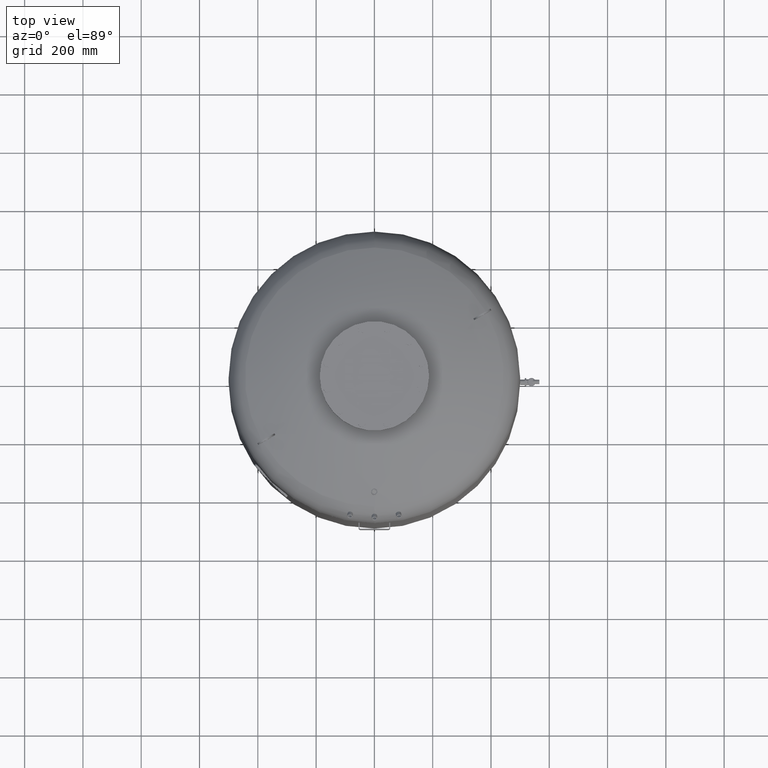
[diagram: clean part render]
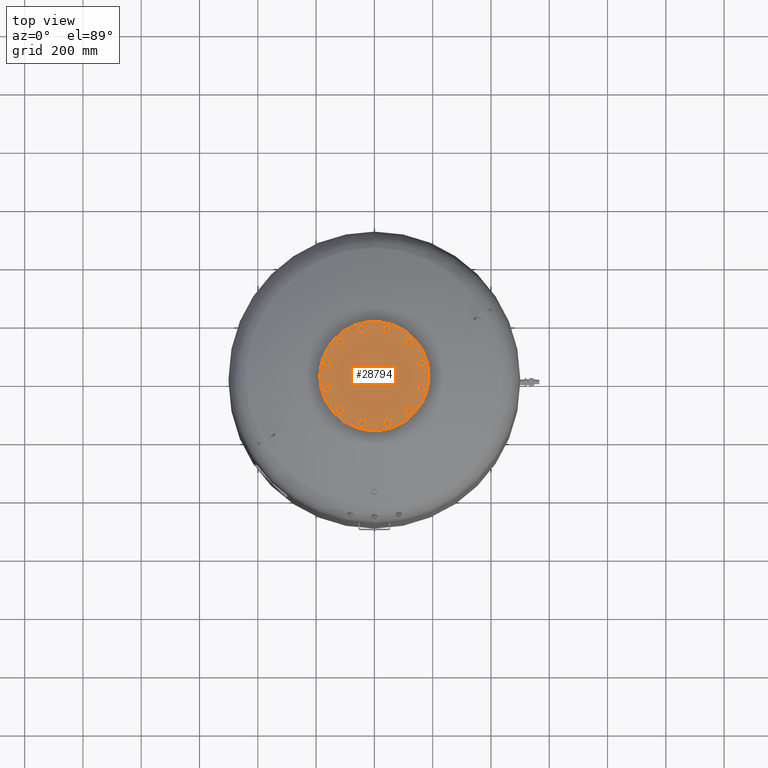
[diagram: same view with one face highlighted and labeled with its STEP entity id]
A machine part, top view. The second image highlights one B-rep face of the part: STEP entity #28794.
In plain terms, the highlighted planar face has unit normal (0, 0, 1).
Its self-contained STEP definition (entity closure, byte-faithful):
#21032=CARTESIAN_POINT('',(-187.500000000000000,0.0,2020.0));
#21033=VERTEX_POINT('',#21032);
#21049=CARTESIAN_POINT('',(187.500000000000000,-2.296137E-014,2020.0));
#21050=VERTEX_POINT('',#21049);
#21057=CARTESIAN_POINT('',(0.0,0.0,2020.0));
#21058=DIRECTION('',(0.0,0.0,-1.0));
#21059=DIRECTION('',(-1.0,0.0,0.0));
#21060=AXIS2_PLACEMENT_3D('',#21057,#21058,#21059);
#21061=CIRCLE('',#21060,187.500000000000000);
#21062=EDGE_CURVE('',#21050,#21033,#21061,.T.);
#26288=CARTESIAN_POINT('',(157.729139400922860,30.104983413641008,2020.0));
#26289=VERTEX_POINT('',#26288);
#26290=CARTESIAN_POINT('',(148.288440171855850,40.247625971983268,2020.0));
#26291=VERTEX_POINT('',#26290);
#26292=CARTESIAN_POINT('',(157.729139400922860,30.104983413641008,2020.0));
#26293=DIRECTION('',(-0.681323780155013,0.731982176419128,0.0));
#26294=VECTOR('',#26293,13.856406460551090);
#26295=LINE('',#26292,#26294);
#26296=EDGE_CURVE('',#26289,#26291,#26295,.T.);
#26328=CARTESIAN_POINT('',(171.233275132485970,33.209547496330110,2020.0));
#26329=VERTEX_POINT('',#26328);
#26330=CARTESIAN_POINT('',(171.233275132485970,33.209547496330110,2020.0));
#26331=DIRECTION('',(-0.974577049973894,-0.224052613607123,0.0));
#26332=VECTOR('',#26331,13.856406460551119);
#26333=LINE('',#26330,#26332);
#26334=EDGE_CURVE('',#26329,#26289,#26333,.T.);
#26359=CARTESIAN_POINT('',(175.296711634982050,46.456754137361422,2020.0));
#26360=VERTEX_POINT('',#26359);
#26361=CARTESIAN_POINT('',(175.296711634982050,46.456754137361422,2020.0));
#26362=DIRECTION('',(-0.293253269818881,-0.956034790026249,0.0));
#26363=VECTOR('',#26362,13.856406460551076);
#26364=LINE('',#26361,#26363);
#26365=EDGE_CURVE('',#26360,#26329,#26364,.T.);
#26390=CARTESIAN_POINT('',(152.351876674351930,53.494832613014587,2020.0));
#26391=VERTEX_POINT('',#26390);
#26392=CARTESIAN_POINT('',(148.288440171855850,40.247625971983268,2020.0));
#26393=DIRECTION('',(0.293253269818881,0.956034790026249,0.0));
#26394=VECTOR('',#26393,13.856406460551083);
#26395=LINE('',#26392,#26394);
#26396=EDGE_CURVE('',#26291,#26391,#26395,.T.);
#26421=CARTESIAN_POINT('',(165.856012405915040,56.599396695703689,2020.0));
#26422=VERTEX_POINT('',#26421);
#26423=CARTESIAN_POINT('',(152.351876674351930,53.494832613014587,2020.0));
#26424=DIRECTION('',(0.974577049973894,0.224052613607123,0.0));
#26425=VECTOR('',#26424,13.856406460551119);
#26426=LINE('',#26423,#26425);
#26427=EDGE_CURVE('',#26391,#26422,#26426,.T.);
#26452=CARTESIAN_POINT('',(165.856012405915040,56.599396695703689,2020.0));
#26453=DIRECTION('',(0.681323780155012,-0.731982176419129,0.0));
#26454=VECTOR('',#26453,13.856406460551096);
#26455=LINE('',#26452,#26454);
#26456=EDGE_CURVE('',#26422,#26360,#26455,.T.);
#26488=CARTESIAN_POINT('',(121.544949931435720,104.936250117183760,2020.0));
#26489=VERTEX_POINT('',#26488);
#26490=CARTESIAN_POINT('',(108.297743290404380,108.999686619679820,2020.0));
#26491=VERTEX_POINT('',#26490);
#26492=CARTESIAN_POINT('',(121.544949931435720,104.936250117183760,2020.0));
#26493=DIRECTION('',(-0.956034790026250,0.293253269818880,0.0));
#26494=VECTOR('',#26493,13.856406460551101);
#26495=LINE('',#26492,#26494);
#26496=EDGE_CURVE('',#26489,#26491,#26495,.T.);
#26528=CARTESIAN_POINT('',(131.687592489777960,114.376949346250780,2020.0));
#26529=VERTEX_POINT('',#26528);
#26530=CARTESIAN_POINT('',(131.687592489777960,114.376949346250780,2020.0));
#26531=DIRECTION('',(-0.731982176419127,-0.681323780155014,0.0));
#26532=VECTOR('',#26531,13.856406460551080);
#26533=LINE('',#26530,#26532);
#26534=EDGE_CURVE('',#26529,#26489,#26533,.T.);
#26559=CARTESIAN_POINT('',(128.583028407088880,127.881085077813880,2020.0));
#26560=VERTEX_POINT('',#26559);
#26561=CARTESIAN_POINT('',(128.583028407088880,127.881085077813880,2020.0));
#26562=DIRECTION('',(0.224052613607122,-0.974577049973894,0.0));
#26563=VECTOR('',#26562,13.856406460551099);
#26564=LINE('',#26561,#26563);
#26565=EDGE_CURVE('',#26560,#26529,#26564,.T.);
#26590=CARTESIAN_POINT('',(105.193179207715300,122.503822351242900,2020.0));
#26591=VERTEX_POINT('',#26590);
#26592=CARTESIAN_POINT('',(108.297743290404380,108.999686619679820,2020.0));
#26593=DIRECTION('',(-0.224052613607122,0.974577049973894,0.0));
#26594=VECTOR('',#26593,13.856406460551087);
#26595=LINE('',#26592,#26594);
#26596=EDGE_CURVE('',#26491,#26591,#26595,.T.);
#26621=CARTESIAN_POINT('',(115.335821766057560,131.944521580309950,2020.0));
#26622=VERTEX_POINT('',#26621);
#26623=CARTESIAN_POINT('',(105.193179207715300,122.503822351242900,2020.0));
#26624=DIRECTION('',(0.731982176419127,0.681323780155014,0.0));
#26625=VECTOR('',#26624,13.856406460551121);
#26626=LINE('',#26623,#26625);
#26627=EDGE_CURVE('',#26591,#26622,#26626,.T.);
#26652=CARTESIAN_POINT('',(115.335821766057560,131.944521580309950,2020.0));
#26653=DIRECTION('',(0.956034790026249,-0.293253269818881,0.0));
#26654=VECTOR('',#26653,13.856406460551076);
#26655=LINE('',#26652,#26654);
#26656=EDGE_CURVE('',#26622,#26560,#26655,.T.);
#26688=CARTESIAN_POINT('',(52.792889283739193,151.649933345076730,2020.0));
#26689=VERTEX_POINT('',#26688);
#26690=CARTESIAN_POINT('',(39.288753552176118,148.545369262387680,2020.0));
#26691=VERTEX_POINT('',#26690);
#26692=CARTESIAN_POINT('',(52.792889283739193,151.649933345076730,2020.0));
#26693=DIRECTION('',(-0.974577049973894,-0.224052613607120,0.0));
#26694=VECTOR('',#26693,13.856406460551073);
#26695=LINE('',#26692,#26694);
#26696=EDGE_CURVE('',#26689,#26691,#26695,.T.);
#26728=CARTESIAN_POINT('',(56.856325786235274,164.897139986108100,2020.0));
#26729=VERTEX_POINT('',#26728);
#26730=CARTESIAN_POINT('',(56.856325786235274,164.897139986108100,2020.0));
#26731=DIRECTION('',(-0.293253269818881,-0.956034790026249,0.0));
#26732=VECTOR('',#26731,13.856406460551133);
#26733=LINE('',#26730,#26732);
#26734=EDGE_CURVE('',#26729,#26689,#26733,.T.);
#26759=CARTESIAN_POINT('',(47.415626557168267,175.039782544450330,2020.0));
#26760=VERTEX_POINT('',#26759);
#26761=CARTESIAN_POINT('',(47.415626557168267,175.039782544450330,2020.0));
#26762=DIRECTION('',(0.681323780155014,-0.731982176419128,0.0));
#26763=VECTOR('',#26762,13.856406460551069);
#26764=LINE('',#26761,#26763);
#26765=EDGE_CURVE('',#26760,#26729,#26764,.T.);
#26790=CARTESIAN_POINT('',(29.848054323109103,158.688011820729910,2020.0));
#26791=VERTEX_POINT('',#26790);
#26792=CARTESIAN_POINT('',(39.288753552176118,148.545369262387680,2020.0));
#26793=DIRECTION('',(-0.681323780155014,0.731982176419127,0.0));
#26794=VECTOR('',#26793,13.856406460551076);
#26795=LINE('',#26792,#26794);
#26796=EDGE_CURVE('',#26691,#26791,#26795,.T.);
#26821=CARTESIAN_POINT('',(33.911490825605156,171.935218461761250,2020.0));
#26822=VERTEX_POINT('',#26821);
#26823=CARTESIAN_POINT('',(29.848054323109103,158.688011820729910,2020.0));
#26824=DIRECTION('',(0.293253269818879,0.956034790026250,0.0));
#26825=VECTOR('',#26824,13.856406460551097);
#26826=LINE('',#26823,#26825);
#26827=EDGE_CURVE('',#26791,#26822,#26826,.T.);
#26852=CARTESIAN_POINT('',(33.911490825605156,171.935218461761250,2020.0));
#26853=DIRECTION('',(0.974577049973894,0.224052613607121,0.0));
#26854=VECTOR('',#26853,13.856406460551113);
#26855=LINE('',#26852,#26854);
#26856=EDGE_CURVE('',#26822,#26760,#26855,.T.);
#26888=CARTESIAN_POINT('',(-30.104983413641008,157.729139400922860,2020.0));
#26889=VERTEX_POINT('',#26888);
#26890=CARTESIAN_POINT('',(-40.247625971983268,148.288440171855850,2020.0));
#26891=VERTEX_POINT('',#26890);
#26892=CARTESIAN_POINT('',(-30.104983413641008,157.729139400922860,2020.0));
#26893=DIRECTION('',(-0.731982176419128,-0.681323780155013,0.0));
#26894=VECTOR('',#26893,13.856406460551090);
#26895=LINE('',#26892,#26894);
#26896=EDGE_CURVE('',#26889,#26891,#26895,.T.);
#26928=CARTESIAN_POINT('',(-33.209547496330110,171.233275132485970,2020.0));
#26929=VERTEX_POINT('',#26928);
#26930=CARTESIAN_POINT('',(-33.209547496330110,171.233275132485970,2020.0));
#26931=DIRECTION('',(0.224052613607123,-0.974577049973894,0.0));
#26932=VECTOR('',#26931,13.856406460551119);
#26933=LINE('',#26930,#26932);
#26934=EDGE_CURVE('',#26929,#26889,#26933,.T.);
#26959=CARTESIAN_POINT('',(-46.456754137361422,175.296711634982050,2020.0));
#26960=VERTEX_POINT('',#26959);
#26961=CARTESIAN_POINT('',(-46.456754137361422,175.296711634982050,2020.0));
#26962=DIRECTION('',(0.956034790026249,-0.293253269818881,0.0));
#26963=VECTOR('',#26962,13.856406460551076);
#26964=LINE('',#26961,#26963);
#26965=EDGE_CURVE('',#26960,#26929,#26964,.T.);
#26990=CARTESIAN_POINT('',(-53.494832613014587,152.351876674351930,2020.0));
#26991=VERTEX_POINT('',#26990);
#26992=CARTESIAN_POINT('',(-40.247625971983268,148.288440171855850,2020.0));
#26993=DIRECTION('',(-0.956034790026249,0.293253269818881,0.0));
#26994=VECTOR('',#26993,13.856406460551083);
#26995=LINE('',#26992,#26994);
#26996=EDGE_CURVE('',#26891,#26991,#26995,.T.);
#27021=CARTESIAN_POINT('',(-56.599396695703689,165.856012405915040,2020.0));
#27022=VERTEX_POINT('',#27021);
#27023=CARTESIAN_POINT('',(-53.494832613014587,152.351876674351930,2020.0));
#27024=DIRECTION('',(-0.224052613607123,0.974577049973894,0.0));
#27025=VECTOR('',#27024,13.856406460551119);
#27026=LINE('',#27023,#27025);
#27027=EDGE_CURVE('',#26991,#27022,#27026,.T.);
#27052=CARTESIAN_POINT('',(-56.599396695703689,165.856012405915040,2020.0));
#27053=DIRECTION('',(0.731982176419129,0.681323780155012,0.0));
#27054=VECTOR('',#27053,13.856406460551096);
#27055=LINE('',#27052,#27054);
#27056=EDGE_CURVE('',#27022,#26960,#27055,.T.);
#27088=CARTESIAN_POINT('',(-104.936250117183700,121.544949931435750,2020.0));
#27089=VERTEX_POINT('',#27088);
#27090=CARTESIAN_POINT('',(-108.999686619679760,108.297743290404440,2020.0));
#27091=VERTEX_POINT('',#27090);
#27092=CARTESIAN_POINT('',(-104.936250117183700,121.544949931435750,2020.0));
#27093=DIRECTION('',(-0.293253269818880,-0.956034790026249,0.0));
#27094=VECTOR('',#27093,13.856406460551073);
#27095=LINE('',#27092,#27094);
#27096=EDGE_CURVE('',#27089,#27091,#27095,.T.);
#27128=CARTESIAN_POINT('',(-114.376949346250730,131.687592489778010,2020.0));
#27129=VERTEX_POINT('',#27128);
#27130=CARTESIAN_POINT('',(-114.376949346250730,131.687592489778010,2020.0));
#27131=DIRECTION('',(0.681323780155013,-0.731982176419128,0.0));
#27132=VECTOR('',#27131,13.856406460551101);
#27133=LINE('',#27130,#27132);
#27134=EDGE_CURVE('',#27129,#27089,#27133,.T.);
#27159=CARTESIAN_POINT('',(-127.881085077813810,128.583028407088930,2020.0));
#27160=VERTEX_POINT('',#27159);
#27161=CARTESIAN_POINT('',(-127.881085077813810,128.583028407088930,2020.0));
#27162=DIRECTION('',(0.974577049973894,0.224052613607122,0.0));
#27163=VECTOR('',#27162,13.856406460551087);
#27164=LINE('',#27161,#27163);
#27165=EDGE_CURVE('',#27160,#27129,#27164,.T.);
#27190=CARTESIAN_POINT('',(-122.503822351242850,105.193179207715360,2020.0));
#27191=VERTEX_POINT('',#27190);
#27192=CARTESIAN_POINT('',(-108.999686619679760,108.297743290404440,2020.0));
#27193=DIRECTION('',(-0.974577049973894,-0.224052613607122,0.0));
#27194=VECTOR('',#27193,13.856406460551087);
#27195=LINE('',#27192,#27194);
#27196=EDGE_CURVE('',#27091,#27191,#27195,.T.);
#27221=CARTESIAN_POINT('',(-131.944521580309900,115.335821766057620,2020.0));
#27222=VERTEX_POINT('',#27221);
#27223=CARTESIAN_POINT('',(-122.503822351242850,105.193179207715360,2020.0));
#27224=DIRECTION('',(-0.681323780155014,0.731982176419127,0.0));
#27225=VECTOR('',#27224,13.856406460551121);
#27226=LINE('',#27223,#27225);
#27227=EDGE_CURVE('',#27191,#27222,#27226,.T.);
#27252=CARTESIAN_POINT('',(-131.944521580309900,115.335821766057620,2020.0));
#27253=DIRECTION('',(0.293253269818882,0.956034790026249,0.0));
#27254=VECTOR('',#27253,13.856406460551081);
#27255=LINE('',#27252,#27254);
#27256=EDGE_CURVE('',#27222,#27160,#27255,.T.);
#27288=CARTESIAN_POINT('',(-151.649933345076730,52.792889283739214,2020.0));
#27289=VERTEX_POINT('',#27288);
#27290=CARTESIAN_POINT('',(-148.545369262387650,39.288753552176125,2020.0));
#27291=VERTEX_POINT('',#27290);
#27292=CARTESIAN_POINT('',(-151.649933345076730,52.792889283739214,2020.0));
#27293=DIRECTION('',(0.224052613607122,-0.974577049973894,0.0));
#27294=VECTOR('',#27293,13.856406460551092);
#27295=LINE('',#27292,#27294);
#27296=EDGE_CURVE('',#27289,#27291,#27295,.T.);
#27328=CARTESIAN_POINT('',(-164.897139986108100,56.856325786235296,2020.0));
#27329=VERTEX_POINT('',#27328);
#27330=CARTESIAN_POINT('',(-164.897139986108100,56.856325786235296,2020.0));
#27331=DIRECTION('',(0.956034790026249,-0.293253269818881,0.0));
#27332=VECTOR('',#27331,13.856406460551133);
#27333=LINE('',#27330,#27332);
#27334=EDGE_CURVE('',#27329,#27289,#27333,.T.);
#27359=CARTESIAN_POINT('',(-175.039782544450300,47.415626557168260,2020.0));
#27360=VERTEX_POINT('',#27359);
#27361=CARTESIAN_POINT('',(-175.039782544450300,47.415626557168260,2020.0));
#27362=DIRECTION('',(0.731982176419126,0.681323780155016,0.0));
#27363=VECTOR('',#27362,13.856406460551069);
#27364=LINE('',#27361,#27363);
#27365=EDGE_CURVE('',#27360,#27329,#27364,.T.);
#27390=CARTESIAN_POINT('',(-158.688011820729910,29.848054323109110,2020.0));
#27391=VERTEX_POINT('',#27390);
#27392=CARTESIAN_POINT('',(-148.545369262387650,39.288753552176125,2020.0));
#27393=DIRECTION('',(-0.731982176419128,-0.681323780155013,0.0));
#27394=VECTOR('',#27393,13.856406460551096);
#27395=LINE('',#27392,#27394);
#27396=EDGE_CURVE('',#27291,#27391,#27395,.T.);
#27421=CARTESIAN_POINT('',(-171.935218461761250,33.911490825605171,2020.0));
#27422=VERTEX_POINT('',#27421);
#27423=CARTESIAN_POINT('',(-158.688011820729910,29.848054323109110,2020.0));
#27424=DIRECTION('',(-0.956034790026250,0.293253269818880,0.0));
#27425=VECTOR('',#27424,13.856406460551101);
#27426=LINE('',#27423,#27425);
#27427=EDGE_CURVE('',#27391,#27422,#27426,.T.);
#27452=CARTESIAN_POINT('',(-171.935218461761250,33.911490825605171,2020.0));
#27453=DIRECTION('',(-0.224052613607120,0.974577049973894,0.0));
#27454=VECTOR('',#27453,13.856406460551087);
#27455=LINE('',#27452,#27454);
#27456=EDGE_CURVE('',#27422,#27360,#27455,.T.);
#27488=CARTESIAN_POINT('',(-157.729139400922860,-30.104983413640987,2020.0));
#27489=VERTEX_POINT('',#27488);
#27490=CARTESIAN_POINT('',(-148.288440171855850,-40.247625971983247,2020.0));
#27491=VERTEX_POINT('',#27490);
#27492=CARTESIAN_POINT('',(-157.729139400922860,-30.104983413640987,2020.0));
#27493=DIRECTION('',(0.681323780155013,-0.731982176419128,0.0));
#27494=VECTOR('',#27493,13.856406460551090);
#27495=LINE('',#27492,#27494);
#27496=EDGE_CURVE('',#27489,#27491,#27495,.T.);
#27528=CARTESIAN_POINT('',(-171.233275132486000,-33.209547496330096,2020.0));
#27529=VERTEX_POINT('',#27528);
#27530=CARTESIAN_POINT('',(-171.233275132486000,-33.209547496330096,2020.0));
#27531=DIRECTION('',(0.974577049973894,0.224052613607123,0.0));
#27532=VECTOR('',#27531,13.856406460551147);
#27533=LINE('',#27530,#27532);
#27534=EDGE_CURVE('',#27529,#27489,#27533,.T.);
#27559=CARTESIAN_POINT('',(-175.296711634982050,-46.456754137361401,2020.0));
#27560=VERTEX_POINT('',#27559);
#27561=CARTESIAN_POINT('',(-175.296711634982050,-46.456754137361401,2020.0));
#27562=DIRECTION('',(0.293253269818880,0.956034790026250,0.0));
#27563=VECTOR('',#27562,13.856406460551062);
#27564=LINE('',#27561,#27563);
#27565=EDGE_CURVE('',#27560,#27529,#27564,.T.);
#27590=CARTESIAN_POINT('',(-152.351876674351960,-53.494832613014580,2020.0));
#27591=VERTEX_POINT('',#27590);
#27592=CARTESIAN_POINT('',(-148.288440171855850,-40.247625971983247,2020.0));
#27593=DIRECTION('',(-0.293253269818883,-0.956034790026249,0.0));
#27594=VECTOR('',#27593,13.856406460551106);
#27595=LINE('',#27592,#27594);
#27596=EDGE_CURVE('',#27491,#27591,#27595,.T.);
#27621=CARTESIAN_POINT('',(-165.856012405915070,-56.599396695703646,2020.0));
#27622=VERTEX_POINT('',#27621);
#27623=CARTESIAN_POINT('',(-152.351876674351960,-53.494832613014580,2020.0));
#27624=DIRECTION('',(-0.974577049973894,-0.224052613607121,0.0));
#27625=VECTOR('',#27624,13.856406460551110);
#27626=LINE('',#27623,#27625);
#27627=EDGE_CURVE('',#27591,#27622,#27626,.T.);
#27652=CARTESIAN_POINT('',(-165.856012405915070,-56.599396695703646,2020.0));
#27653=DIRECTION('',(-0.681323780155012,0.731982176419129,0.0));
#27654=VECTOR('',#27653,13.856406460551062);
#27655=LINE('',#27652,#27654);
#27656=EDGE_CURVE('',#27622,#27560,#27655,.T.);
#27688=CARTESIAN_POINT('',(-121.544949931435750,-104.936250117183680,2020.0));
#27689=VERTEX_POINT('',#27688);
#27690=CARTESIAN_POINT('',(-108.297743290404440,-108.999686619679760,2020.0));
#27691=VERTEX_POINT('',#27690);
#27692=CARTESIAN_POINT('',(-121.544949931435750,-104.936250117183680,2020.0));
#27693=DIRECTION('',(0.956034790026249,-0.293253269818882,0.0));
#27694=VECTOR('',#27693,13.856406460551081);
#27695=LINE('',#27692,#27694);
#27696=EDGE_CURVE('',#27689,#27691,#27695,.T.);
#27728=CARTESIAN_POINT('',(-131.687592489778010,-114.376949346250730,2020.0));
#27729=VERTEX_POINT('',#27728);
#27730=CARTESIAN_POINT('',(-131.687592489778010,-114.376949346250730,2020.0));
#27731=DIRECTION('',(0.731982176419127,0.681323780155014,0.0));
#27732=VECTOR('',#27731,13.856406460551121);
#27733=LINE('',#27730,#27732);
#27734=EDGE_CURVE('',#27729,#27689,#27733,.T.);
#27759=CARTESIAN_POINT('',(-128.583028407088930,-127.881085077813790,2020.0));
#27760=VERTEX_POINT('',#27759);
#27761=CARTESIAN_POINT('',(-128.583028407088930,-127.881085077813790,2020.0));
#27762=DIRECTION('',(-0.224052613607122,0.974577049973894,0.0));
#27763=VECTOR('',#27762,13.856406460551071);
#27764=LINE('',#27761,#27763);
#27765=EDGE_CURVE('',#27760,#27729,#27764,.T.);
#27790=CARTESIAN_POINT('',(-105.193179207715360,-122.503822351242850,2020.0));
#27791=VERTEX_POINT('',#27790);
#27792=CARTESIAN_POINT('',(-108.297743290404440,-108.999686619679760,2020.0));
#27793=DIRECTION('',(0.224052613607122,-0.974577049973894,0.0));
#27794=VECTOR('',#27793,13.856406460551087);
#27795=LINE('',#27792,#27794);
#27796=EDGE_CURVE('',#27691,#27791,#27795,.T.);
#27821=CARTESIAN_POINT('',(-115.335821766057620,-131.944521580309900,2020.0));
#27822=VERTEX_POINT('',#27821);
#27823=CARTESIAN_POINT('',(-105.193179207715360,-122.503822351242850,2020.0));
#27824=DIRECTION('',(-0.731982176419127,-0.681323780155014,0.0));
#27825=VECTOR('',#27824,13.856406460551121);
#27826=LINE('',#27823,#27825);
#27827=EDGE_CURVE('',#27791,#27822,#27826,.T.);
#27852=CARTESIAN_POINT('',(-115.335821766057620,-131.944521580309900,2020.0));
#27853=DIRECTION('',(-0.956034790026249,0.293253269818883,0.0));
#27854=VECTOR('',#27853,13.856406460551085);
#27855=LINE('',#27852,#27854);
#27856=EDGE_CURVE('',#27822,#27760,#27855,.T.);
#27888=CARTESIAN_POINT('',(-52.792889283739228,-151.649933345076730,2020.0));
#27889=VERTEX_POINT('',#27888);
#27890=CARTESIAN_POINT('',(-39.288753552176132,-148.545369262387680,2020.0));
#27891=VERTEX_POINT('',#27890);
#27892=CARTESIAN_POINT('',(-52.792889283739228,-151.649933345076730,2020.0));
#27893=DIRECTION('',(0.974577049973894,0.224052613607120,0.0));
#27894=VECTOR('',#27893,13.856406460551094);
#27895=LINE('',#27892,#27894);
#27896=EDGE_CURVE('',#27889,#27891,#27895,.T.);
#27928=CARTESIAN_POINT('',(-56.856325786235296,-164.897139986108100,2020.0));
#27929=VERTEX_POINT('',#27928);
#27930=CARTESIAN_POINT('',(-56.856325786235296,-164.897139986108100,2020.0));
#27931=DIRECTION('',(0.293253269818880,0.956034790026250,0.0));
#27932=VECTOR('',#27931,13.856406460551129);
#27933=LINE('',#27930,#27932);
#27934=EDGE_CURVE('',#27929,#27889,#27933,.T.);
#27959=CARTESIAN_POINT('',(-47.415626557168281,-175.039782544450300,2020.0));
#27960=VERTEX_POINT('',#27959);
#27961=CARTESIAN_POINT('',(-47.415626557168281,-175.039782544450300,2020.0));
#27962=DIRECTION('',(-0.681323780155015,0.731982176419126,0.0));
#27963=VECTOR('',#27962,13.856406460551055);
#27964=LINE('',#27961,#27963);
#27965=EDGE_CURVE('',#27960,#27929,#27964,.T.);
#27990=CARTESIAN_POINT('',(-29.848054323109121,-158.688011820729910,2020.0));
#27991=VERTEX_POINT('',#27990);
#27992=CARTESIAN_POINT('',(-39.288753552176132,-148.545369262387680,2020.0));
#27993=DIRECTION('',(0.681323780155014,-0.731982176419127,0.0));
#27994=VECTOR('',#27993,13.856406460551073);
#27995=LINE('',#27992,#27994);
#27996=EDGE_CURVE('',#27891,#27991,#27995,.T.);
#28021=CARTESIAN_POINT('',(-33.911490825605199,-171.935218461761280,2020.0));
#28022=VERTEX_POINT('',#28021);
#28023=CARTESIAN_POINT('',(-29.848054323109121,-158.688011820729910,2020.0));
#28024=DIRECTION('',(-0.293253269818880,-0.956034790026249,0.0));
#28025=VECTOR('',#28024,13.856406460551133);
#28026=LINE('',#28023,#28025);
#28027=EDGE_CURVE('',#27991,#28022,#28026,.T.);
#28052=CARTESIAN_POINT('',(-33.911490825605199,-171.935218461761280,2020.0));
#28053=DIRECTION('',(-0.974577049973895,-0.224052613607118,0.0));
#28054=VECTOR('',#28053,13.856406460551074);
#28055=LINE('',#28052,#28054);
#28056=EDGE_CURVE('',#28022,#27960,#28055,.T.);
#28088=CARTESIAN_POINT('',(30.104983413640952,-157.729139400922890,2020.0));
#28089=VERTEX_POINT('',#28088);
#28090=CARTESIAN_POINT('',(40.247625971983211,-148.288440171855880,2020.0));
#28091=VERTEX_POINT('',#28090);
#28092=CARTESIAN_POINT('',(30.104983413640952,-157.729139400922890,2020.0));
#28093=DIRECTION('',(0.731982176419128,0.681323780155013,0.0));
#28094=VECTOR('',#28093,13.856406460551090);
#28095=LINE('',#28092,#28094);
#28096=EDGE_CURVE('',#28089,#28091,#28095,.T.);
#28128=CARTESIAN_POINT('',(33.209547496330039,-171.233275132486000,2020.0));
#28129=VERTEX_POINT('',#28128);
#28130=CARTESIAN_POINT('',(33.209547496330039,-171.233275132486000,2020.0));
#28131=DIRECTION('',(-0.224052613607122,0.974577049973894,0.0));
#28132=VECTOR('',#28131,13.856406460551115);
#28133=LINE('',#28130,#28132);
#28134=EDGE_CURVE('',#28129,#28089,#28133,.T.);
#28159=CARTESIAN_POINT('',(46.456754137361351,-175.296711634982070,2020.0));
#28160=VERTEX_POINT('',#28159);
#28161=CARTESIAN_POINT('',(46.456754137361351,-175.296711634982070,2020.0));
#28162=DIRECTION('',(-0.956034790026249,0.293253269818881,0.0));
#28163=VECTOR('',#28162,13.856406460551076);
#28164=LINE('',#28161,#28163);
#28165=EDGE_CURVE('',#28160,#28129,#28164,.T.);
#28190=CARTESIAN_POINT('',(53.494832613014523,-152.351876674351960,2020.0));
#28191=VERTEX_POINT('',#28190);
#28192=CARTESIAN_POINT('',(40.247625971983211,-148.288440171855880,2020.0));
#28193=DIRECTION('',(0.956034790026249,-0.293253269818881,0.0));
#28194=VECTOR('',#28193,13.856406460551076);
#28195=LINE('',#28192,#28194);
#28196=EDGE_CURVE('',#28091,#28191,#28195,.T.);
#28221=CARTESIAN_POINT('',(56.599396695703625,-165.856012405915070,2020.0));
#28222=VERTEX_POINT('',#28221);
#28223=CARTESIAN_POINT('',(53.494832613014523,-152.351876674351960,2020.0));
#28224=DIRECTION('',(0.224052613607123,-0.974577049973894,0.0));
#28225=VECTOR('',#28224,13.856406460551119);
#28226=LINE('',#28223,#28225);
#28227=EDGE_CURVE('',#28191,#28222,#28226,.T.);
#28252=CARTESIAN_POINT('',(56.599396695703625,-165.856012405915070,2020.0));
#28253=DIRECTION('',(-0.731982176419129,-0.681323780155012,0.0));
#28254=VECTOR('',#28253,13.856406460551101);
#28255=LINE('',#28252,#28254);
#28256=EDGE_CURVE('',#28222,#28160,#28255,.T.);
#28288=CARTESIAN_POINT('',(104.936250117183660,-121.544949931435800,2020.0));
#28289=VERTEX_POINT('',#28288);
#28290=CARTESIAN_POINT('',(108.999686619679750,-108.297743290404470,2020.0));
#28291=VERTEX_POINT('',#28290);
#28292=CARTESIAN_POINT('',(104.936250117183660,-121.544949931435800,2020.0));
#28293=DIRECTION('',(0.293253269818882,0.956034790026249,0.0));
#28294=VECTOR('',#28293,13.856406460551094);
#28295=LINE('',#28292,#28294);
#28296=EDGE_CURVE('',#28289,#28291,#28295,.T.);
#28328=CARTESIAN_POINT('',(114.376949346250710,-131.687592489778040,2020.0));
#28329=VERTEX_POINT('',#28328);
#28330=CARTESIAN_POINT('',(114.376949346250710,-131.687592489778040,2020.0));
#28331=DIRECTION('',(-0.681323780155015,0.731982176419126,0.0));
#28332=VECTOR('',#28331,13.856406460551110);
#28333=LINE('',#28330,#28332);
#28334=EDGE_CURVE('',#28329,#28289,#28333,.T.);
#28359=CARTESIAN_POINT('',(127.881085077813760,-128.583028407088960,2020.0));
#28360=VERTEX_POINT('',#28359);
#28361=CARTESIAN_POINT('',(127.881085077813760,-128.583028407088960,2020.0));
#28362=DIRECTION('',(-0.974577049973894,-0.224052613607122,0.0));
#28363=VECTOR('',#28362,13.856406460551058);
#28364=LINE('',#28361,#28363);
#28365=EDGE_CURVE('',#28360,#28329,#28364,.T.);
#28390=CARTESIAN_POINT('',(122.503822351242830,-105.193179207715390,2020.0));
#28391=VERTEX_POINT('',#28390);
#28392=CARTESIAN_POINT('',(108.999686619679750,-108.297743290404470,2020.0));
#28393=DIRECTION('',(0.974577049973894,0.224052613607122,0.0));
#28394=VECTOR('',#28393,13.856406460551087);
#28395=LINE('',#28392,#28394);
#28396=EDGE_CURVE('',#28291,#28391,#28395,.T.);
#28421=CARTESIAN_POINT('',(131.944521580309870,-115.335821766057650,2020.0));
#28422=VERTEX_POINT('',#28421);
#28423=CARTESIAN_POINT('',(122.503822351242830,-105.193179207715390,2020.0));
#28424=DIRECTION('',(0.681323780155014,-0.731982176419127,0.0));
#28425=VECTOR('',#28424,13.856406460551110);
#28426=LINE('',#28423,#28425);
#28427=EDGE_CURVE('',#28391,#28422,#28426,.T.);
#28452=CARTESIAN_POINT('',(131.944521580309870,-115.335821766057650,2020.0));
#28453=DIRECTION('',(-0.293253269818883,-0.956034790026249,0.0));
#28454=VECTOR('',#28453,13.856406460551085);
#28455=LINE('',#28452,#28454);
#28456=EDGE_CURVE('',#28422,#28360,#28455,.T.);
#28488=CARTESIAN_POINT('',(151.649933345076730,-52.792889283739228,2020.0));
#28489=VERTEX_POINT('',#28488);
#28490=CARTESIAN_POINT('',(148.545369262387650,-39.288753552176139,2020.0));
#28491=VERTEX_POINT('',#28490);
#28492=CARTESIAN_POINT('',(151.649933345076730,-52.792889283739228,2020.0));
#28493=DIRECTION('',(-0.224052613607122,0.974577049973894,0.0));
#28494=VECTOR('',#28493,13.856406460551092);
#28495=LINE('',#28492,#28494);
#28496=EDGE_CURVE('',#28489,#28491,#28495,.T.);
#28528=CARTESIAN_POINT('',(164.897139986108070,-56.856325786235303,2020.0));
#28529=VERTEX_POINT('',#28528);
#28530=CARTESIAN_POINT('',(164.897139986108070,-56.856325786235303,2020.0));
#28531=DIRECTION('',(-0.956034790026249,0.293253269818881,0.0));
#28532=VECTOR('',#28531,13.856406460551105);
#28533=LINE('',#28530,#28532);
#28534=EDGE_CURVE('',#28529,#28489,#28533,.T.);
#28559=CARTESIAN_POINT('',(175.039782544450300,-47.415626557168295,2020.0));
#28560=VERTEX_POINT('',#28559);
#28561=CARTESIAN_POINT('',(175.039782544450300,-47.415626557168295,2020.0));
#28562=DIRECTION('',(-0.731982176419128,-0.681323780155014,0.0));
#28563=VECTOR('',#28562,13.856406460551069);
#28564=LINE('',#28561,#28563);
#28565=EDGE_CURVE('',#28560,#28529,#28564,.T.);
#28590=CARTESIAN_POINT('',(158.688011820729910,-29.848054323109132,2020.0));
#28591=VERTEX_POINT('',#28590);
#28592=CARTESIAN_POINT('',(148.545369262387650,-39.288753552176139,2020.0));
#28593=DIRECTION('',(0.731982176419128,0.681323780155013,0.0));
#28594=VECTOR('',#28593,13.856406460551090);
#28595=LINE('',#28592,#28594);
#28596=EDGE_CURVE('',#28491,#28591,#28595,.T.);
#28621=CARTESIAN_POINT('',(171.935218461761250,-33.911490825605206,2020.0));
#28622=VERTEX_POINT('',#28621);
#28623=CARTESIAN_POINT('',(158.688011820729910,-29.848054323109132,2020.0));
#28624=DIRECTION('',(0.956034790026249,-0.293253269818881,0.0));
#28625=VECTOR('',#28624,13.856406460551105);
#28626=LINE('',#28623,#28625);
#28627=EDGE_CURVE('',#28591,#28622,#28626,.T.);
#28652=CARTESIAN_POINT('',(171.935218461761250,-33.911490825605206,2020.0));
#28653=DIRECTION('',(0.224052613607120,-0.974577049973894,0.0));
#28654=VECTOR('',#28653,13.856406460551087);
#28655=LINE('',#28652,#28654);
#28656=EDGE_CURVE('',#28622,#28560,#28655,.T.);
#28683=CARTESIAN_POINT('',(-93.750000000000000,-7.888609E-031,2020.0));
#28684=DIRECTION('',(0.0,0.0,1.0));
#28685=DIRECTION('',(0.0,1.0,0.0));
#28686=AXIS2_PLACEMENT_3D('',#28683,#28684,#28685);
#28687=PLANE('',#28686);
#28688=CARTESIAN_POINT('',(0.0,0.0,2020.0));
#28689=DIRECTION('',(0.0,0.0,-1.0));
#28690=DIRECTION('',(-1.0,0.0,0.0));
#28691=AXIS2_PLACEMENT_3D('',#28688,#28689,#28690);
#28692=CIRCLE('',#28691,187.500000000000000);
#28693=EDGE_CURVE('',#21033,#21050,#28692,.T.);
#28694=ORIENTED_EDGE('',*,*,#28693,.F.);
#28695=ORIENTED_EDGE('',*,*,#21062,.F.);
#28696=EDGE_LOOP('',(#28694,#28695));
#28697=FACE_OUTER_BOUND('',#28696,.T.);
#28698=ORIENTED_EDGE('',*,*,#26296,.T.);
#28699=ORIENTED_EDGE('',*,*,#26396,.T.);
#28700=ORIENTED_EDGE('',*,*,#26427,.T.);
#28701=ORIENTED_EDGE('',*,*,#26456,.T.);
#28702=ORIENTED_EDGE('',*,*,#26365,.T.);
#28703=ORIENTED_EDGE('',*,*,#26334,.T.);
#28704=EDGE_LOOP('',(#28698,#28699,#28700,#28701,#28702,#28703));
#28705=FACE_BOUND('',#28704,.T.);
#28706=ORIENTED_EDGE('',*,*,#26496,.T.);
#28707=ORIENTED_EDGE('',*,*,#26596,.T.);
#28708=ORIENTED_EDGE('',*,*,#26627,.T.);
#28709=ORIENTED_EDGE('',*,*,#26656,.T.);
#28710=ORIENTED_EDGE('',*,*,#26565,.T.);
#28711=ORIENTED_EDGE('',*,*,#26534,.T.);
#28712=EDGE_LOOP('',(#28706,#28707,#28708,#28709,#28710,#28711));
#28713=FACE_BOUND('',#28712,.T.);
#28714=ORIENTED_EDGE('',*,*,#26696,.T.);
#28715=ORIENTED_EDGE('',*,*,#26796,.T.);
#28716=ORIENTED_EDGE('',*,*,#26827,.T.);
#28717=ORIENTED_EDGE('',*,*,#26856,.T.);
#28718=ORIENTED_EDGE('',*,*,#26765,.T.);
#28719=ORIENTED_EDGE('',*,*,#26734,.T.);
#28720=EDGE_LOOP('',(#28714,#28715,#28716,#28717,#28718,#28719));
#28721=FACE_BOUND('',#28720,.T.);
#28722=ORIENTED_EDGE('',*,*,#26896,.T.);
#28723=ORIENTED_EDGE('',*,*,#26996,.T.);
#28724=ORIENTED_EDGE('',*,*,#27027,.T.);
#28725=ORIENTED_EDGE('',*,*,#27056,.T.);
#28726=ORIENTED_EDGE('',*,*,#26965,.T.);
#28727=ORIENTED_EDGE('',*,*,#26934,.T.);
#28728=EDGE_LOOP('',(#28722,#28723,#28724,#28725,#28726,#28727));
#28729=FACE_BOUND('',#28728,.T.);
#28730=ORIENTED_EDGE('',*,*,#27096,.T.);
#28731=ORIENTED_EDGE('',*,*,#27196,.T.);
#28732=ORIENTED_EDGE('',*,*,#27227,.T.);
#28733=ORIENTED_EDGE('',*,*,#27256,.T.);
#28734=ORIENTED_EDGE('',*,*,#27165,.T.);
#28735=ORIENTED_EDGE('',*,*,#27134,.T.);
#28736=EDGE_LOOP('',(#28730,#28731,#28732,#28733,#28734,#28735));
#28737=FACE_BOUND('',#28736,.T.);
#28738=ORIENTED_EDGE('',*,*,#27296,.T.);
#28739=ORIENTED_EDGE('',*,*,#27396,.T.);
#28740=ORIENTED_EDGE('',*,*,#27427,.T.);
#28741=ORIENTED_EDGE('',*,*,#27456,.T.);
#28742=ORIENTED_EDGE('',*,*,#27365,.T.);
#28743=ORIENTED_EDGE('',*,*,#27334,.T.);
#28744=EDGE_LOOP('',(#28738,#28739,#28740,#28741,#28742,#28743));
#28745=FACE_BOUND('',#28744,.T.);
#28746=ORIENTED_EDGE('',*,*,#27496,.T.);
#28747=ORIENTED_EDGE('',*,*,#27596,.T.);
#28748=ORIENTED_EDGE('',*,*,#27627,.T.);
#28749=ORIENTED_EDGE('',*,*,#27656,.T.);
#28750=ORIENTED_EDGE('',*,*,#27565,.T.);
#28751=ORIENTED_EDGE('',*,*,#27534,.T.);
#28752=EDGE_LOOP('',(#28746,#28747,#28748,#28749,#28750,#28751));
#28753=FACE_BOUND('',#28752,.T.);
#28754=ORIENTED_EDGE('',*,*,#27696,.T.);
#28755=ORIENTED_EDGE('',*,*,#27796,.T.);
#28756=ORIENTED_EDGE('',*,*,#27827,.T.);
#28757=ORIENTED_EDGE('',*,*,#27856,.T.);
#28758=ORIENTED_EDGE('',*,*,#27765,.T.);
#28759=ORIENTED_EDGE('',*,*,#27734,.T.);
#28760=EDGE_LOOP('',(#28754,#28755,#28756,#28757,#28758,#28759));
#28761=FACE_BOUND('',#28760,.T.);
#28762=ORIENTED_EDGE('',*,*,#27896,.T.);
#28763=ORIENTED_EDGE('',*,*,#27996,.T.);
#28764=ORIENTED_EDGE('',*,*,#28027,.T.);
#28765=ORIENTED_EDGE('',*,*,#28056,.T.);
#28766=ORIENTED_EDGE('',*,*,#27965,.T.);
#28767=ORIENTED_EDGE('',*,*,#27934,.T.);
#28768=EDGE_LOOP('',(#28762,#28763,#28764,#28765,#28766,#28767));
#28769=FACE_BOUND('',#28768,.T.);
#28770=ORIENTED_EDGE('',*,*,#28096,.T.);
#28771=ORIENTED_EDGE('',*,*,#28196,.T.);
#28772=ORIENTED_EDGE('',*,*,#28227,.T.);
#28773=ORIENTED_EDGE('',*,*,#28256,.T.);
#28774=ORIENTED_EDGE('',*,*,#28165,.T.);
#28775=ORIENTED_EDGE('',*,*,#28134,.T.);
#28776=EDGE_LOOP('',(#28770,#28771,#28772,#28773,#28774,#28775));
#28777=FACE_BOUND('',#28776,.T.);
#28778=ORIENTED_EDGE('',*,*,#28296,.T.);
#28779=ORIENTED_EDGE('',*,*,#28396,.T.);
#28780=ORIENTED_EDGE('',*,*,#28427,.T.);
#28781=ORIENTED_EDGE('',*,*,#28456,.T.);
#28782=ORIENTED_EDGE('',*,*,#28365,.T.);
#28783=ORIENTED_EDGE('',*,*,#28334,.T.);
#28784=EDGE_LOOP('',(#28778,#28779,#28780,#28781,#28782,#28783));
#28785=FACE_BOUND('',#28784,.T.);
#28786=ORIENTED_EDGE('',*,*,#28496,.T.);
#28787=ORIENTED_EDGE('',*,*,#28596,.T.);
#28788=ORIENTED_EDGE('',*,*,#28627,.T.);
#28789=ORIENTED_EDGE('',*,*,#28656,.T.);
#28790=ORIENTED_EDGE('',*,*,#28565,.T.);
#28791=ORIENTED_EDGE('',*,*,#28534,.T.);
#28792=EDGE_LOOP('',(#28786,#28787,#28788,#28789,#28790,#28791));
#28793=FACE_BOUND('',#28792,.T.);
#28794=ADVANCED_FACE('',(#28697,#28705,#28713,#28721,#28729,#28737,#28745,#28753,#28761,#28769,#28777,#28785,#28793),#28687,.T.);